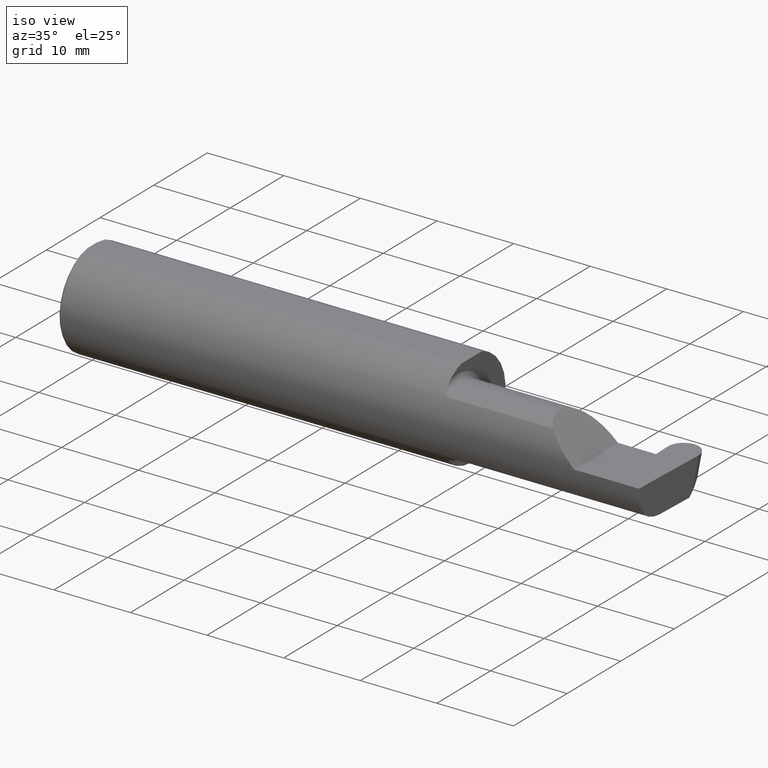
[diagram: clean part render]
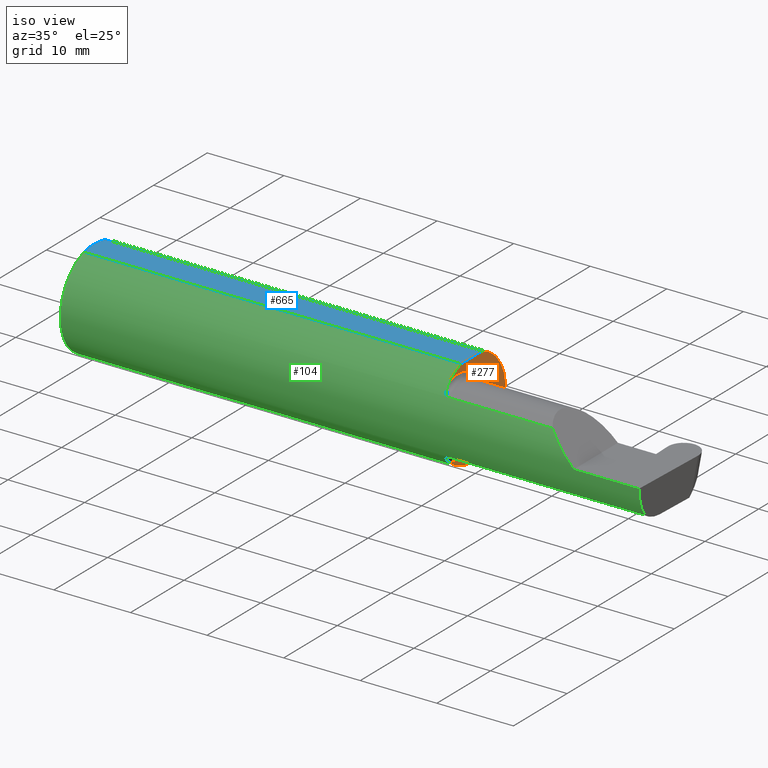
[diagram: same view with three faces highlighted in distinct colors, each labeled with its STEP entity id]
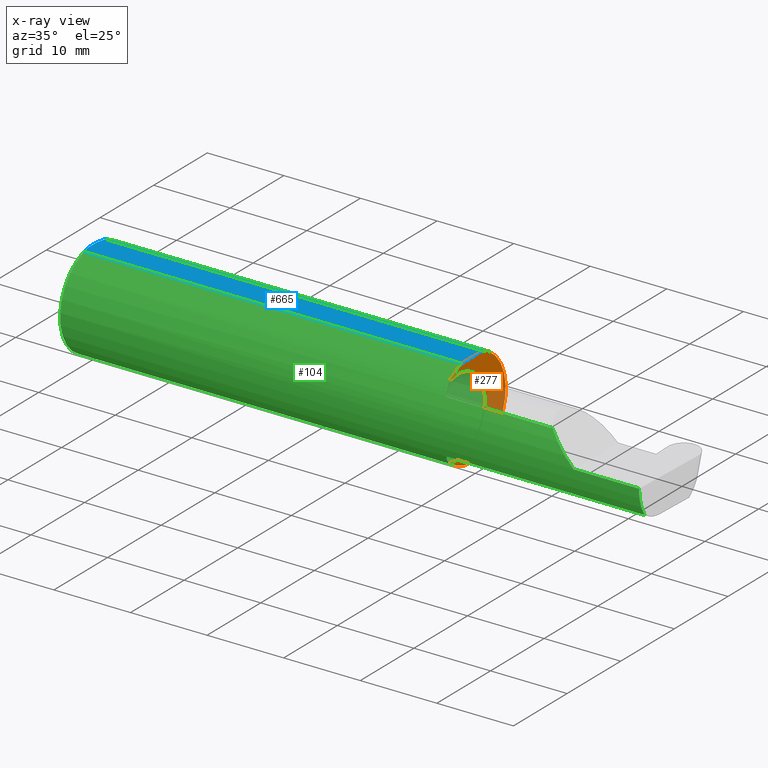
[diagram: x-ray of the same camera — body ghosted, the three highlighted faces saturated]
A machine part, iso view with three faces highlighted in distinct colors.
The next image is the same camera in x-ray (body ghosted, the three faces saturated) — at least one of them is partly hidden behind the body in this view.
Their STEP definitions:

[orange] entity #277 — the highlighted planar face has unit normal (1, 0, 0).
#3 = ORIENTED_EDGE ( 'NONE', *, *, #369, .T. ) ;
#9 = PLANE ( 'NONE',  #672 ) ;
#43 = VERTEX_POINT ( 'NONE', #252 ) ;
#54 = CARTESIAN_POINT ( 'NONE',  ( 1.950000000000000178, 0.000000000000000000, 0.000000000000000000 ) ) ;
#62 = FACE_OUTER_BOUND ( 'NONE', #75, .T. ) ;
#75 = EDGE_LOOP ( 'NONE', ( #3, #319, #517, #220 ) ) ;
#98 = VERTEX_POINT ( 'NONE', #269 ) ;
#158 = VERTEX_POINT ( 'NONE', #266 ) ;
#175 = CARTESIAN_POINT ( 'NONE',  ( 1.950000000000000178, -0.1008500000000000507, 0.000000000000000000 ) ) ;
#194 = DIRECTION ( 'NONE',  ( 1.000000000000000000, 3.825103525024356331E-17, 0.000000000000000000 ) ) ;
#196 = EDGE_CURVE ( 'NONE', #158, #98, #380, .T. ) ;
#220 = ORIENTED_EDGE ( 'NONE', *, *, #294, .T. ) ;
#223 = DIRECTION ( 'NONE',  ( -3.825103525024356331E-17, 1.000000000000000000, 0.000000000000000000 ) ) ;
#230 = CIRCLE ( 'NONE', #480, 0.1999999999999999833 ) ;
#232 = CARTESIAN_POINT ( 'NONE',  ( 1.950000000000000178, 0.2498499999999999055, 0.000000000000000000 ) ) ;
#252 = CARTESIAN_POINT ( 'NONE',  ( 1.950000000000000178, -0.1616050818046604054, 0.1905487340154980447 ) ) ;
#262 = EDGE_CURVE ( 'NONE', #158, #43, #439, .T. ) ;
#266 = CARTESIAN_POINT ( 'NONE',  ( 1.950000000000000178, -0.07650098038587527238, 0.2378499999999998671 ) ) ;
#269 = CARTESIAN_POINT ( 'NONE',  ( 1.950000000000000178, 0.07650098038587520299, 0.2378499999999998671 ) ) ;
#277 = ADVANCED_FACE ( 'NONE', ( #62 ), #9, .T. ) ;
#279 = DIRECTION ( 'NONE',  ( 1.000000000000000000, 3.825103525024356331E-17, 0.000000000000000000 ) ) ;
#285 = VERTEX_POINT ( 'NONE', #663 ) ;
#294 = EDGE_CURVE ( 'NONE', #43, #285, #230, .T. ) ;
#319 = ORIENTED_EDGE ( 'NONE', *, *, #196, .F. ) ;
#333 = VECTOR ( 'NONE', #597, 39.37007874015748143 ) ;
#343 = DIRECTION ( 'NONE',  ( 1.000000000000000000, 3.825103525024356331E-17, 0.000000000000000000 ) ) ;
#346 = DIRECTION ( 'NONE',  ( 0.000000000000000000, -1.000000000000000000, 0.000000000000000000 ) ) ;
#369 = EDGE_CURVE ( 'NONE', #285, #98, #616, .T. ) ;
#377 = AXIS2_PLACEMENT_3D ( 'NONE', #601, #279, #607 ) ;
#380 = LINE ( 'NONE', #590, #333 ) ;
#415 = AXIS2_PLACEMENT_3D ( 'NONE', #54, #194, #422 ) ;
#422 = DIRECTION ( 'NONE',  ( 0.000000000000000000, 1.000000000000000000, 0.000000000000000000 ) ) ;
#439 = CIRCLE ( 'NONE', #377, 0.2498499999999999888 ) ;
#480 = AXIS2_PLACEMENT_3D ( 'NONE', #175, #494, #346 ) ;
#494 = DIRECTION ( 'NONE',  ( -1.000000000000000000, -3.825103525024356331E-17, -0.000000000000000000 ) ) ;
#517 = ORIENTED_EDGE ( 'NONE', *, *, #262, .T. ) ;
#590 = CARTESIAN_POINT ( 'NONE',  ( 1.950000000000000178, 0.2498499999999997945, 0.2378499999999998671 ) ) ;
#597 = DIRECTION ( 'NONE',  ( -3.825103525024356331E-17, 1.000000000000000000, 0.000000000000000000 ) ) ;
#601 = CARTESIAN_POINT ( 'NONE',  ( 1.950000000000000178, 0.000000000000000000, 0.000000000000000000 ) ) ;
#607 = DIRECTION ( 'NONE',  ( 0.000000000000000000, 1.000000000000000000, 0.000000000000000000 ) ) ;
#616 = CIRCLE ( 'NONE', #415, 0.2498499999999999888 ) ;
#663 = CARTESIAN_POINT ( 'NONE',  ( 1.950000000000000178, -0.1616050818046604054, -0.1905487340154980447 ) ) ;
#672 = AXIS2_PLACEMENT_3D ( 'NONE', #232, #343, #223 ) ;

[blue] entity #665 — the highlighted planar face has unit normal (0, 0, 1).
#24 = B_SPLINE_CURVE_WITH_KNOTS ( 'NONE', 3,
 ( #200, #481, #539, #535 ),
 .UNSPECIFIED., .F., .F.,
 ( 4, 4 ),
 ( 0.01593449416844770414, 0.01712021724825603733 ),
 .UNSPECIFIED. ) ;
#51 = VECTOR ( 'NONE', #82, 39.37007874015748143 ) ;
#52 = VECTOR ( 'NONE', #99, 39.37007874015748143 ) ;
#53 = FACE_OUTER_BOUND ( 'NONE', #149, .T. ) ;
#55 = ORIENTED_EDGE ( 'NONE', *, *, #196, .T. ) ;
#82 = DIRECTION ( 'NONE',  ( -0.000000000000000000, 1.000000000000000000, -0.000000000000000000 ) ) ;
#85 = EDGE_CURVE ( 'NONE', #236, #430, #693, .T. ) ;
#90 = AXIS2_PLACEMENT_3D ( 'NONE', #107, #332, #227 ) ;
#98 = VERTEX_POINT ( 'NONE', #269 ) ;
#99 = DIRECTION ( 'NONE',  ( 1.000000000000000000, 0.000000000000000000, 0.000000000000000000 ) ) ;
#107 = CARTESIAN_POINT ( 'NONE',  ( 3.501298404146671484, 0.2498499999999998500, 0.2378499999999998671 ) ) ;
#113 = ORIENTED_EDGE ( 'NONE', *, *, #564, .F. ) ;
#149 = EDGE_LOOP ( 'NONE', ( #347, #55, #444, #113, #206, #315 ) ) ;
#158 = VERTEX_POINT ( 'NONE', #266 ) ;
#161 = CARTESIAN_POINT ( 'NONE',  ( 0.009999999999999856226, -0.07650098038587520299, 0.2378499999999998671 ) ) ;
#196 = EDGE_CURVE ( 'NONE', #158, #98, #380, .T. ) ;
#200 = CARTESIAN_POINT ( 'NONE',  ( 0.000000000000000000, 0.03090954545120574992, 0.2378499999999998671 ) ) ;
#206 = ORIENTED_EDGE ( 'NONE', *, *, #417, .F. ) ;
#208 = LINE ( 'NONE', #697, #561 ) ;
#227 = DIRECTION ( 'NONE',  ( 1.000000000000000000, 0.000000000000000000, -0.000000000000000000 ) ) ;
#236 = VERTEX_POINT ( 'NONE', #161 ) ;
#248 = CARTESIAN_POINT ( 'NONE',  ( 0.000000000000000000, -0.03090954545120560767, 0.2378499999999998671 ) ) ;
#266 = CARTESIAN_POINT ( 'NONE',  ( 1.950000000000000178, -0.07650098038587527238, 0.2378499999999998671 ) ) ;
#269 = CARTESIAN_POINT ( 'NONE',  ( 1.950000000000000178, 0.07650098038587520299, 0.2378499999999998671 ) ) ;
#315 = ORIENTED_EDGE ( 'NONE', *, *, #85, .F. ) ;
#332 = DIRECTION ( 'NONE',  ( 0.000000000000000000, 0.000000000000000000, 1.000000000000000000 ) ) ;
#333 = VECTOR ( 'NONE', #597, 39.37007874015748143 ) ;
#347 = ORIENTED_EDGE ( 'NONE', *, *, #541, .T. ) ;
#350 = CARTESIAN_POINT ( 'NONE',  ( 0.005459900170181723050, -0.06167314502012866823, 0.2378499999999998671 ) ) ;
#380 = LINE ( 'NONE', #590, #333 ) ;
#410 = CARTESIAN_POINT ( 'NONE',  ( 0.000000000000000000, 0.2498499999999998500, 0.2378499999999998671 ) ) ;
#417 = EDGE_CURVE ( 'NONE', #430, #533, #684, .T. ) ;
#427 = CARTESIAN_POINT ( 'NONE',  ( 0.000000000000000000, 0.03090954545120574992, 0.2378499999999998671 ) ) ;
#430 = VERTEX_POINT ( 'NONE', #248 ) ;
#432 = CARTESIAN_POINT ( 'NONE',  ( 0.000000000000000000, -0.03090954545120560767, 0.2378499999999998671 ) ) ;
#444 = ORIENTED_EDGE ( 'NONE', *, *, #487, .T. ) ;
#481 = CARTESIAN_POINT ( 'NONE',  ( 0.002005502345409059580, 0.04647171987093979412, 0.2378499999999998671 ) ) ;
#484 = LINE ( 'NONE', #528, #52 ) ;
#487 = EDGE_CURVE ( 'NONE', #98, #671, #208, .T. ) ;
#498 = CARTESIAN_POINT ( 'NONE',  ( 0.009999999999999856226, 0.07650098038587520299, 0.2378499999999998671 ) ) ;
#514 = CARTESIAN_POINT ( 'NONE',  ( 0.001983148254845701515, -0.04629825796642599717, 0.2378499999999998671 ) ) ;
#528 = CARTESIAN_POINT ( 'NONE',  ( 0.000000000000000000, -0.07650098038587520299, 0.2378499999999998671 ) ) ;
#533 = VERTEX_POINT ( 'NONE', #427 ) ;
#535 = CARTESIAN_POINT ( 'NONE',  ( 0.009999999999999856226, 0.07650098038587520299, 0.2378499999999998671 ) ) ;
#539 = CARTESIAN_POINT ( 'NONE',  ( 0.005466242398876384675, 0.06169385855649840017, 0.2378499999999998671 ) ) ;
#541 = EDGE_CURVE ( 'NONE', #236, #158, #484, .T. ) ;
#561 = VECTOR ( 'NONE', #582, 39.37007874015748143 ) ;
#564 = EDGE_CURVE ( 'NONE', #533, #671, #24, .T. ) ;
#582 = DIRECTION ( 'NONE',  ( -1.000000000000000000, -0.000000000000000000, -0.000000000000000000 ) ) ;
#590 = CARTESIAN_POINT ( 'NONE',  ( 1.950000000000000178, 0.2498499999999997945, 0.2378499999999998671 ) ) ;
#597 = DIRECTION ( 'NONE',  ( -3.825103525024356331E-17, 1.000000000000000000, 0.000000000000000000 ) ) ;
#622 = CARTESIAN_POINT ( 'NONE',  ( 0.009999999999999856226, -0.07650098038587520299, 0.2378499999999998671 ) ) ;
#657 = PLANE ( 'NONE',  #90 ) ;
#665 = ADVANCED_FACE ( 'NONE', ( #53 ), #657, .T. ) ;
#671 = VERTEX_POINT ( 'NONE', #498 ) ;
#684 = LINE ( 'NONE', #410, #51 ) ;
#693 = B_SPLINE_CURVE_WITH_KNOTS ( 'NONE', 3,
 ( #622, #350, #514, #432 ),
 .UNSPECIFIED., .F., .F.,
 ( 4, 4 ),
 ( 0.01317593029100230795, 0.01435802289191462008 ),
 .UNSPECIFIED. ) ;
#697 = CARTESIAN_POINT ( 'NONE',  ( 0.000000000000000000, 0.07650098038587520299, 0.2378499999999998671 ) ) ;

[green] entity #104 — the highlighted cylindrical surface (partial cylindrical patch) has radius 6.3462 mm, axis along (-1, -0, -0).
#6 = CARTESIAN_POINT ( 'NONE',  ( 1.962616400345755574, -0.2024684335577102701, 0.1464246884265638649 ) ) ;
#10 = VERTEX_POINT ( 'NONE', #578 ) ;
#26 = CARTESIAN_POINT ( 'NONE',  ( 1.967611663768900065, -0.2061921161193829843, -0.1411075319999377520 ) ) ;
#27 = AXIS2_PLACEMENT_3D ( 'NONE', #646, #201, #151 ) ;
#30 = CARTESIAN_POINT ( 'NONE',  ( 1.950000000000000178, -0.1616050818046604054, -0.1905487340154980447 ) ) ;
#43 = VERTEX_POINT ( 'NONE', #252 ) ;
#46 = ORIENTED_EDGE ( 'NONE', *, *, #369, .F. ) ;
#48 = CARTESIAN_POINT ( 'NONE',  ( 2.985438186182187259, -0.2498499999999999888, 0.000000000000000000 ) ) ;
#52 = VECTOR ( 'NONE', #99, 39.37007874015748143 ) ;
#54 = CARTESIAN_POINT ( 'NONE',  ( 1.950000000000000178, 0.000000000000000000, 0.000000000000000000 ) ) ;
#64 = VECTOR ( 'NONE', #117, 39.37007874015748143 ) ;
#72 = B_SPLINE_CURVE_WITH_KNOTS ( 'NONE', 3,
 ( #500, #122, #557, #283, #504, #605, #566, #6, #670, #562, #507, #235, #178, #334 ),
 .UNSPECIFIED., .F., .F.,
 ( 4, 2, 2, 2, 2, 2, 4 ),
 ( 0.0003834465838148165464, 0.0008781406165086598969, 0.001372834649202503247, 0.001867528681896348658, 0.002114875698243275700, 0.002238549206416746810, 0.002362222714590217487 ),
 .UNSPECIFIED. ) ;
#77 = VECTOR ( 'NONE', #100, 39.37007874015748143 ) ;
#95 = VERTEX_POINT ( 'NONE', #698 ) ;
#96 = CARTESIAN_POINT ( 'NONE',  ( 1.956147634408387459, -0.1932733126899460196, -0.1584637047788198250 ) ) ;
#98 = VERTEX_POINT ( 'NONE', #269 ) ;
#99 = DIRECTION ( 'NONE',  ( 1.000000000000000000, 0.000000000000000000, 0.000000000000000000 ) ) ;
#100 = DIRECTION ( 'NONE',  ( -1.000000000000000000, -3.825103525024356331E-17, -0.000000000000000000 ) ) ;
#104 = ADVANCED_FACE ( 'NONE', ( #323 ), #489, .T. ) ;
#105 = DIRECTION ( 'NONE',  ( -1.000000000000000000, -0.000000000000000000, -0.000000000000000000 ) ) ;
#117 = DIRECTION ( 'NONE',  ( 1.000000000000000000, 3.825103525024356331E-17, 0.000000000000000000 ) ) ;
#122 = CARTESIAN_POINT ( 'NONE',  ( 1.950000000000000844, -0.1665641037263009272, 0.1863429692936361959 ) ) ;
#125 = CIRCLE ( 'NONE', #219, 0.2498499999999999888 ) ;
#142 = EDGE_CURVE ( 'NONE', #166, #95, #213, .T. ) ;
#151 = DIRECTION ( 'NONE',  ( 0.000000000000000000, 0.000000000000000000, 1.000000000000000000 ) ) ;
#158 = VERTEX_POINT ( 'NONE', #266 ) ;
#160 =( BOUNDED_CURVE ( )  B_SPLINE_CURVE ( 3, ( #385, #708, #393, #48 ),
 .UNSPECIFIED., .F., .T. ) 
 B_SPLINE_CURVE_WITH_KNOTS ( ( 4, 4 ),
 ( 6.160376845738947615, 6.746954780470606039 ),
 .UNSPECIFIED. ) 
 CURVE ( )  GEOMETRIC_REPRESENTATION_ITEM ( )  RATIONAL_B_SPLINE_CURVE ( ( 1.000000000000000000, 0.9715321379117538569, 0.9715321379117538569, 1.000000000000000000 ) ) 
 REPRESENTATION_ITEM ( '' )  );
#161 = CARTESIAN_POINT ( 'NONE',  ( 0.009999999999999856226, -0.07650098038587520299, 0.2378499999999998671 ) ) ;
#166 = VERTEX_POINT ( 'NONE', #587 ) ;
#174 = ORIENTED_EDGE ( 'NONE', *, *, #262, .F. ) ;
#178 = CARTESIAN_POINT ( 'NONE',  ( 1.973329956043142985, -0.2080850024798590603, 0.1382955322595676440 ) ) ;
#190 = CARTESIAN_POINT ( 'NONE',  ( 2.650000000000000355, -0.2498499999999999610, 4.286263797015729199E-17 ) ) ;
#194 = DIRECTION ( 'NONE',  ( 1.000000000000000000, 3.825103525024356331E-17, 0.000000000000000000 ) ) ;
#195 = ORIENTED_EDGE ( 'NONE', *, *, #142, .F. ) ;
#197 = CARTESIAN_POINT ( 'NONE',  ( 2.600434159100402987, -0.2498499999999999610, 0.04956584089959713973 ) ) ;
#199 = EDGE_CURVE ( 'NONE', #358, #376, #482, .T. ) ;
#201 = DIRECTION ( 'NONE',  ( -1.000000000000000000, -0.000000000000000000, -0.000000000000000000 ) ) ;
#207 =( BOUNDED_CURVE ( )  B_SPLINE_CURVE ( 3, ( #625, #197, #295, #303 ),
 .UNSPECIFIED., .F., .F. ) 
 B_SPLINE_CURVE_WITH_KNOTS ( ( 4, 4 ),
 ( 4.712388980384689674, 5.298966915116348986 ),
 .UNSPECIFIED. ) 
 CURVE ( )  GEOMETRIC_REPRESENTATION_ITEM ( )  RATIONAL_B_SPLINE_CURVE ( ( 1.000000000000000000, 0.9715321379117536349, 0.9715321379117536349, 1.000000000000000000 ) ) 
 REPRESENTATION_ITEM ( '' )  );
#208 = LINE ( 'NONE', #697, #561 ) ;
#213 = LINE ( 'NONE', #690, #77 ) ;
#219 = AXIS2_PLACEMENT_3D ( 'NONE', #600, #272, #502 ) ;
#235 = CARTESIAN_POINT ( 'NONE',  ( 1.971718393013768722, -0.2077830475237240626, 0.1387513848711937892 ) ) ;
#236 = VERTEX_POINT ( 'NONE', #161 ) ;
#251 = CARTESIAN_POINT ( 'NONE',  ( 1.975000000000000089, -0.2080850024789289709, -0.1382955322609668580 ) ) ;
#252 = CARTESIAN_POINT ( 'NONE',  ( 1.950000000000000178, -0.1616050818046604054, 0.1905487340154980447 ) ) ;
#260 = AXIS2_PLACEMENT_3D ( 'NONE', #390, #281, #340 ) ;
#262 = EDGE_CURVE ( 'NONE', #158, #43, #439, .T. ) ;
#266 = CARTESIAN_POINT ( 'NONE',  ( 1.950000000000000178, -0.07650098038587527238, 0.2378499999999998671 ) ) ;
#267 = ORIENTED_EDGE ( 'NONE', *, *, #271, .F. ) ;
#269 = CARTESIAN_POINT ( 'NONE',  ( 1.950000000000000178, 0.07650098038587520299, 0.2378499999999998671 ) ) ;
#270 = ORIENTED_EDGE ( 'NONE', *, *, #644, .T. ) ;
#271 = EDGE_CURVE ( 'NONE', #608, #10, #394, .T. ) ;
#272 = DIRECTION ( 'NONE',  ( 1.000000000000000000, 0.000000000000000000, 0.000000000000000000 ) ) ;
#279 = DIRECTION ( 'NONE',  ( 1.000000000000000000, 3.825103525024356331E-17, 0.000000000000000000 ) ) ;
#281 = DIRECTION ( 'NONE',  ( 1.000000000000000000, 0.000000000000000000, 0.000000000000000000 ) ) ;
#283 = CARTESIAN_POINT ( 'NONE',  ( 1.951849548162863934, -0.1805300287242672663, 0.1728462070311780063 ) ) ;
#285 = VERTEX_POINT ( 'NONE', #663 ) ;
#289 = CARTESIAN_POINT ( 'NONE',  ( 0.009999999999999856226, 0.000000000000000000, -0.2498499999999999888 ) ) ;
#295 = CARTESIAN_POINT ( 'NONE',  ( 2.552984868485331571, -0.2355204011147991605, 0.09701513151466779894 ) ) ;
#303 = CARTESIAN_POINT ( 'NONE',  ( 2.511704467739031887, -0.2080850024789288877, 0.1382955322609669413 ) ) ;
#321 = EDGE_CURVE ( 'NONE', #331, #671, #575, .T. ) ;
#323 = FACE_OUTER_BOUND ( 'NONE', #598, .T. ) ;
#324 = ORIENTED_EDGE ( 'NONE', *, *, #700, .T. ) ;
#331 = VERTEX_POINT ( 'NONE', #289 ) ;
#334 = CARTESIAN_POINT ( 'NONE',  ( 1.975000000000000089, -0.2080850024789289432, 0.1382955322609669135 ) ) ;
#340 = DIRECTION ( 'NONE',  ( 0.000000000000000000, 0.000000000000000000, -1.000000000000000000 ) ) ;
#341 = ORIENTED_EDGE ( 'NONE', *, *, #359, .F. ) ;
#358 = VERTEX_POINT ( 'NONE', #658 ) ;
#359 = EDGE_CURVE ( 'NONE', #43, #608, #72, .T. ) ;
#366 = CARTESIAN_POINT ( 'NONE',  ( 1.951385488563269988, -0.1808287530430324752, -0.1728790649396288182 ) ) ;
#369 = EDGE_CURVE ( 'NONE', #285, #98, #616, .T. ) ;
#372 = ORIENTED_EDGE ( 'NONE', *, *, #541, .F. ) ;
#376 = VERTEX_POINT ( 'NONE', #190 ) ;
#377 = AXIS2_PLACEMENT_3D ( 'NONE', #601, #279, #607 ) ;
#385 = CARTESIAN_POINT ( 'NONE',  ( 2.984481223124517690, -0.2080850024789289432, -0.1382955322609668858 ) ) ;
#390 = CARTESIAN_POINT ( 'NONE',  ( 0.009999999999999856226, 0.000000000000000000, 0.000000000000000000 ) ) ;
#393 = CARTESIAN_POINT ( 'NONE',  ( 2.984572483848591862, -0.2498499999999999610, -0.04956584089959716749 ) ) ;
#394 = LINE ( 'NONE', #401, #64 ) ;
#401 = CARTESIAN_POINT ( 'NONE',  ( 2.408868310000000346, -0.2080850024789289432, 0.1382955322609668858 ) ) ;
#406 = CARTESIAN_POINT ( 'NONE',  ( 1.962579853086619641, -0.2024300470081734915, -0.1464774911482686348 ) ) ;
#415 = AXIS2_PLACEMENT_3D ( 'NONE', #54, #194, #422 ) ;
#421 = B_SPLINE_CURVE_WITH_KNOTS ( 'NONE', 3,
 ( #251, #467, #681, #521, #26, #471, #406, #431, #96, #366, #596, #30 ),
 .UNSPECIFIED., .F., .F.,
 ( 4, 2, 2, 2, 2, 4 ),
 ( 1.964491429041408350E-07, 0.0001260981470478282846, 0.0002519998449527523893, 0.0005038032407626146392, 0.001007410032382339247, 0.002014623615621793234 ),
 .UNSPECIFIED. ) ;
#422 = DIRECTION ( 'NONE',  ( 0.000000000000000000, 1.000000000000000000, 0.000000000000000000 ) ) ;
#429 = EDGE_CURVE ( 'NONE', #376, #10, #207, .T. ) ;
#431 = CARTESIAN_POINT ( 'NONE',  ( 1.958176740666625726, -0.1972027065478072771, -0.1535263573771914747 ) ) ;
#439 = CIRCLE ( 'NONE', #377, 0.2498499999999999888 ) ;
#466 = EDGE_CURVE ( 'NONE', #95, #285, #421, .T. ) ;
#467 = CARTESIAN_POINT ( 'NONE',  ( 1.973318040126430084, -0.2080850024789291097, -0.1382955322609668025 ) ) ;
#471 = CARTESIAN_POINT ( 'NONE',  ( 1.964302603425052807, -0.2041009206016213551, -0.1441313430770040649 ) ) ;
#482 = LINE ( 'NONE', #544, #523 ) ;
#484 = LINE ( 'NONE', #528, #52 ) ;
#487 = EDGE_CURVE ( 'NONE', #98, #671, #208, .T. ) ;
#489 = CYLINDRICAL_SURFACE ( 'NONE', #27, 0.2498499999999999888 ) ;
#495 = ORIENTED_EDGE ( 'NONE', *, *, #199, .T. ) ;
#498 = CARTESIAN_POINT ( 'NONE',  ( 0.009999999999999856226, 0.07650098038587520299, 0.2378499999999998671 ) ) ;
#500 = CARTESIAN_POINT ( 'NONE',  ( 1.950000000000000178, -0.1616050818046604054, 0.1905487340154980447 ) ) ;
#502 = DIRECTION ( 'NONE',  ( 0.000000000000000000, 0.000000000000000000, -1.000000000000000000 ) ) ;
#504 = CARTESIAN_POINT ( 'NONE',  ( 1.952968662030529323, -0.1849684355203377872, 0.1680843977756267815 ) ) ;
#507 = CARTESIAN_POINT ( 'NONE',  ( 1.968876997637615256, -0.2068363917296599241, 0.1401586554522230299 ) ) ;
#521 = CARTESIAN_POINT ( 'NONE',  ( 1.968863362722770738, -0.2068301641248769807, -0.1401678546132361924 ) ) ;
#523 = VECTOR ( 'NONE', #105, 39.37007874015748143 ) ;
#528 = CARTESIAN_POINT ( 'NONE',  ( 0.000000000000000000, -0.07650098038587520299, 0.2378499999999998671 ) ) ;
#541 = EDGE_CURVE ( 'NONE', #236, #158, #484, .T. ) ;
#544 = CARTESIAN_POINT ( 'NONE',  ( 4.499279347985562423E-32, -0.2498499999999999610, 3.673940397442054938E-16 ) ) ;
#557 = CARTESIAN_POINT ( 'NONE',  ( 1.950367168219774294, -0.1713400252854602734, 0.1819601557798505576 ) ) ;
#561 = VECTOR ( 'NONE', #582, 39.37007874015748143 ) ;
#562 = CARTESIAN_POINT ( 'NONE',  ( 1.967647060162627914, -0.2062109266231181015, 0.1410799729252291412 ) ) ;
#565 = ORIENTED_EDGE ( 'NONE', *, *, #487, .F. ) ;
#566 = CARTESIAN_POINT ( 'NONE',  ( 1.958182335268384255, -0.1972192205116131414, 0.1535061413537210095 ) ) ;
#571 = ORIENTED_EDGE ( 'NONE', *, *, #466, .F. ) ;
#575 = CIRCLE ( 'NONE', #260, 0.2498499999999999888 ) ;
#578 = CARTESIAN_POINT ( 'NONE',  ( 2.511704467739031887, -0.2080850024789288877, 0.1382955322609669413 ) ) ;
#582 = DIRECTION ( 'NONE',  ( -1.000000000000000000, -0.000000000000000000, -0.000000000000000000 ) ) ;
#587 = CARTESIAN_POINT ( 'NONE',  ( 2.984481223124517690, -0.2080850024789289432, -0.1382955322609668858 ) ) ;
#596 = CARTESIAN_POINT ( 'NONE',  ( 1.950000000000000400, -0.1716188362992555339, -0.1820560320165480195 ) ) ;
#598 = EDGE_LOOP ( 'NONE', ( #195, #324, #495, #668, #267, #341, #174, #372, #270, #678, #565, #46, #571 ) ) ;
#600 = CARTESIAN_POINT ( 'NONE',  ( 0.009999999999999856226, 0.000000000000000000, 0.000000000000000000 ) ) ;
#601 = CARTESIAN_POINT ( 'NONE',  ( 1.950000000000000178, 0.000000000000000000, 0.000000000000000000 ) ) ;
#605 = CARTESIAN_POINT ( 'NONE',  ( 1.956159563508733878, -0.1933019864360848161, 0.1584298865564831571 ) ) ;
#607 = DIRECTION ( 'NONE',  ( 0.000000000000000000, 1.000000000000000000, 0.000000000000000000 ) ) ;
#608 = VERTEX_POINT ( 'NONE', #641 ) ;
#616 = CIRCLE ( 'NONE', #415, 0.2498499999999999888 ) ;
#625 = CARTESIAN_POINT ( 'NONE',  ( 2.650000000000000355, -0.2498499999999999610, 4.286263797015729199E-17 ) ) ;
#641 = CARTESIAN_POINT ( 'NONE',  ( 1.975000000000000089, -0.2080850024789289432, 0.1382955322609669135 ) ) ;
#644 = EDGE_CURVE ( 'NONE', #236, #331, #125, .T. ) ;
#646 = CARTESIAN_POINT ( 'NONE',  ( 0.000000000000000000, 0.000000000000000000, 0.000000000000000000 ) ) ;
#658 = CARTESIAN_POINT ( 'NONE',  ( 2.985438186182187259, -0.2498499999999999888, 0.000000000000000000 ) ) ;
#663 = CARTESIAN_POINT ( 'NONE',  ( 1.950000000000000178, -0.1616050818046604054, -0.1905487340154980447 ) ) ;
#668 = ORIENTED_EDGE ( 'NONE', *, *, #429, .T. ) ;
#670 = CARTESIAN_POINT ( 'NONE',  ( 1.964343523383979440, -0.2041337200786083050, 0.1440846171672512943 ) ) ;
#671 = VERTEX_POINT ( 'NONE', #498 ) ;
#678 = ORIENTED_EDGE ( 'NONE', *, *, #321, .T. ) ;
#681 = CARTESIAN_POINT ( 'NONE',  ( 1.971700027347579098, -0.2077785947292767332, -0.1387580622202826686 ) ) ;
#690 = CARTESIAN_POINT ( 'NONE',  ( 2.408868310000000346, -0.2080850024789289432, -0.1382955322609668858 ) ) ;
#697 = CARTESIAN_POINT ( 'NONE',  ( 0.000000000000000000, 0.07650098038587520299, 0.2378499999999998671 ) ) ;
#698 = CARTESIAN_POINT ( 'NONE',  ( 1.975000000000000089, -0.2080850024789289709, -0.1382955322609668580 ) ) ;
#700 = EDGE_CURVE ( 'NONE', #166, #358, #160, .T. ) ;
#708 = CARTESIAN_POINT ( 'NONE',  ( 2.984244149176539018, -0.2355204011147991328, -0.09701513151466779894 ) ) ;